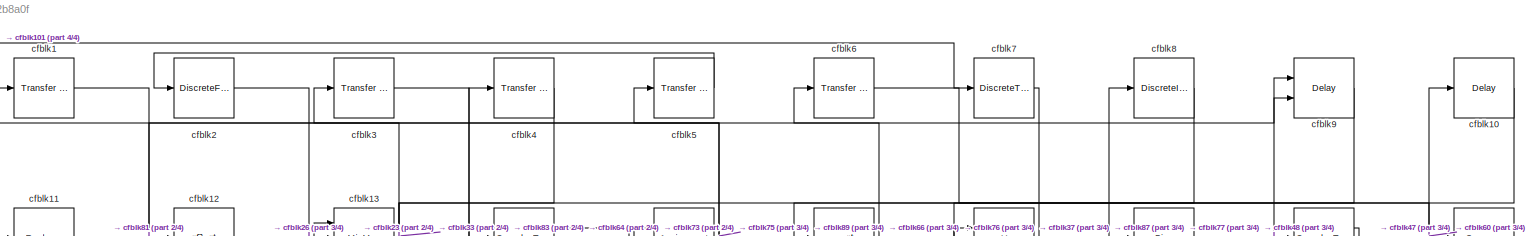
[diagram: root canvas - part 1/4, full width, top band]
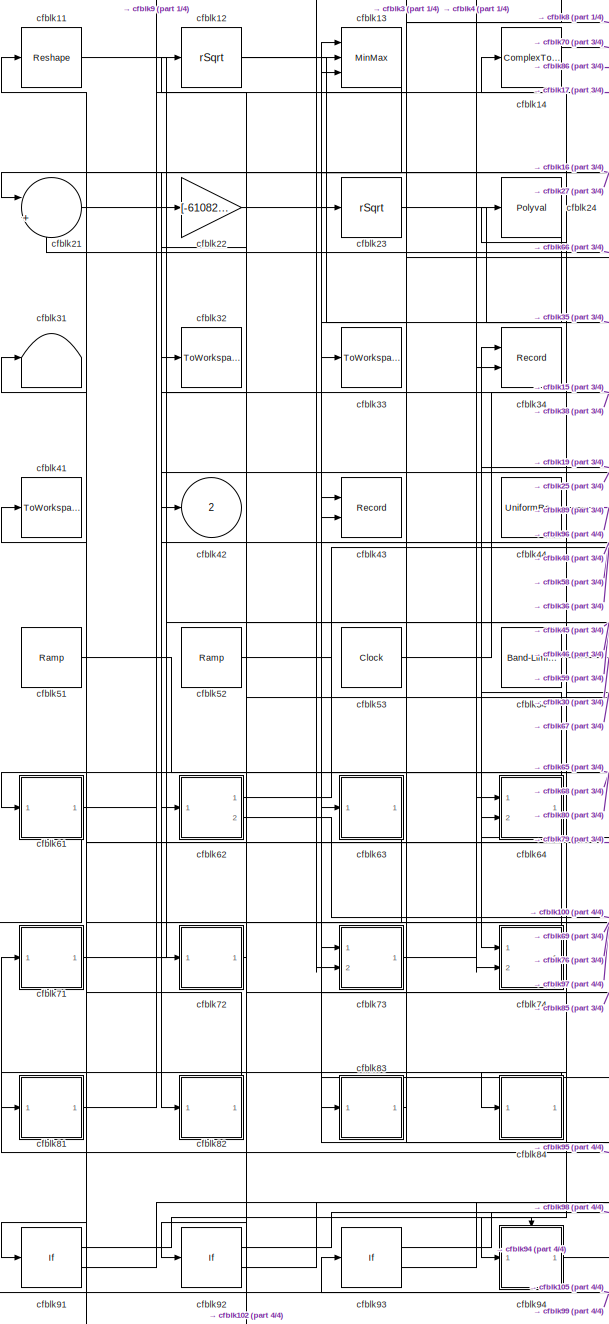
[diagram: root canvas - part 2/4, left side, full height]
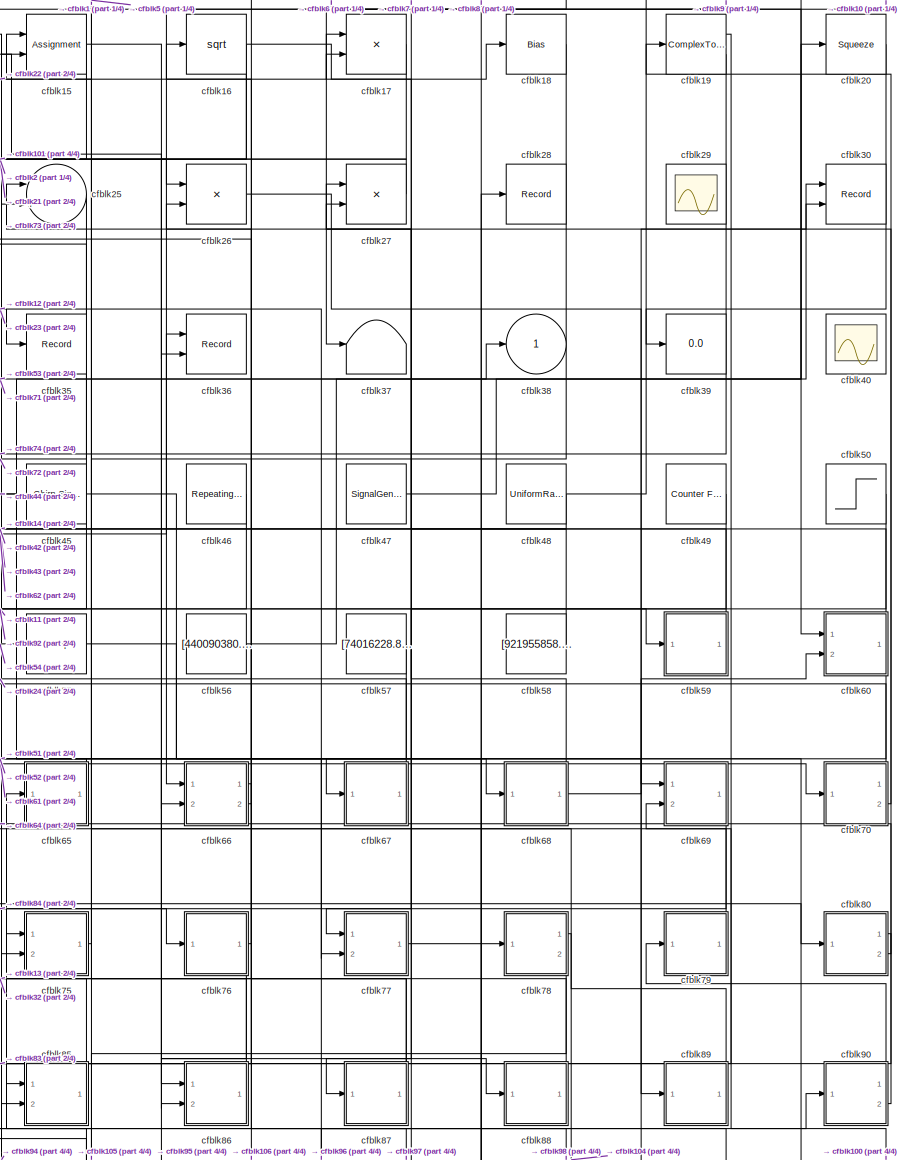
[diagram: root canvas - part 3/4, middle right region]
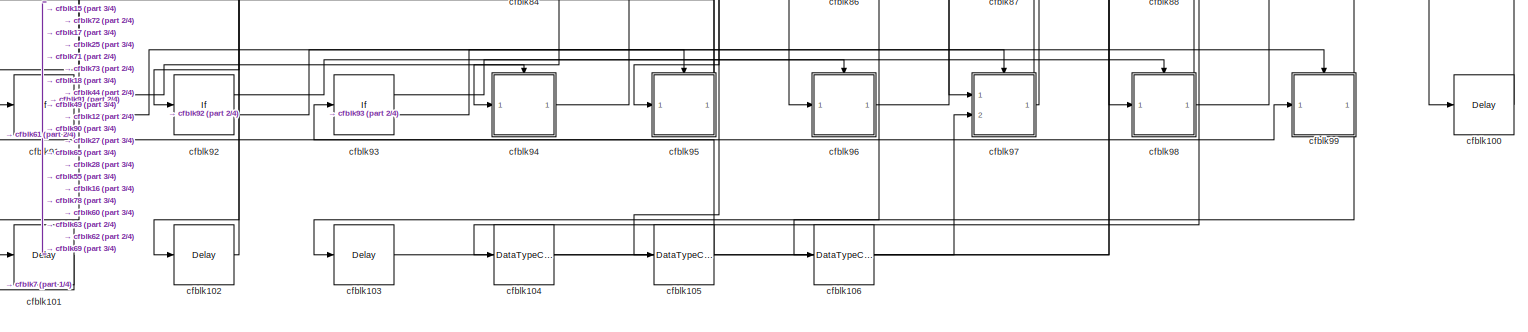
[diagram: root canvas - part 4/4, full width, bottom band]
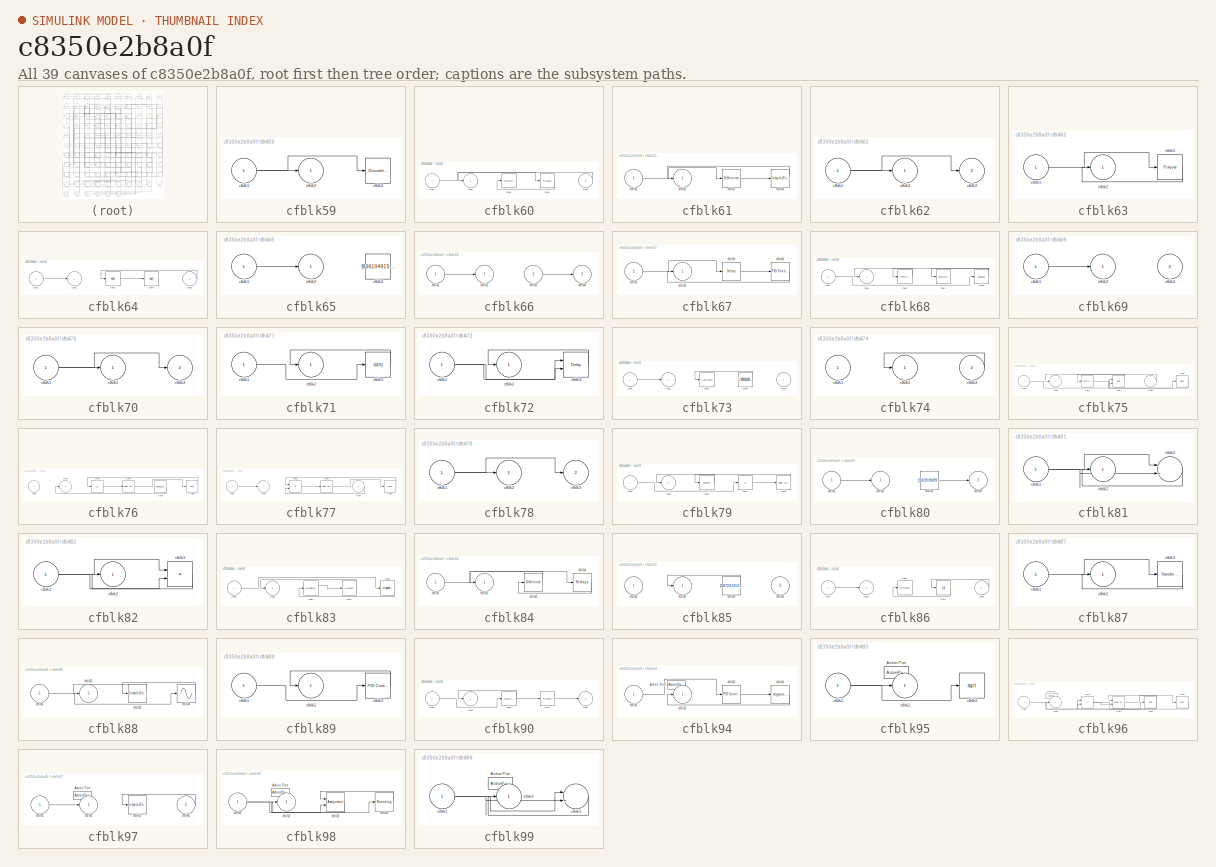
[diagram: thumbnail index - all 39 canvases of the model, root first then tree order]
MODEL slx_c8350e2b8a0f
KIND model
CONFIG AbsTol = auto
CONFIG EnableMultiTasking = off
CONFIG FixedStep = auto
CONFIG MaxStep = auto
CONFIG MinStep = auto
CONFIG RelTol = 1e-3
CONFIG SampleTimeConstraint = Unconstrained
CONFIG SolverName = VariableStepAuto
CONFIG StartTime = 0.0
CONFIG StopTime = 10.0
BLOCK [Reference] cfblk1  REF=simulink/Discrete/Transfer Fcn
Real Zero
  Ports = [1, 1]
  SourceBlock = simulink/Discrete/Transfer Fcn\nReal Zero
  SourceProductBaseCode = SL
  SourceType = Transfer Fcn Real Zero
BLOCK [Delay] cfblk10
  InputPortMap = u0
  Ports = [1, 1]
  SampleTime = 1
BLOCK [Delay] cfblk100
  InputPortMap = u0
  Ports = [1, 1]
  SampleTime = 1
BLOCK [Delay] cfblk101
  InputPortMap = u0
  Ports = [1, 1]
  SampleTime = 1
BLOCK [Delay] cfblk102
  InputPortMap = u0
  Ports = [1, 1]
  SampleTime = 1
BLOCK [Delay] cfblk103
  InputPortMap = u0
  Ports = [1, 1]
  SampleTime = 1
BLOCK [DataTypeConversion] cfblk104
  RndMeth = Floor
  SaturateOnIntegerOverflow = off
BLOCK [DataTypeConversion] cfblk105
  RndMeth = Floor
  SaturateOnIntegerOverflow = off
BLOCK [DataTypeConversion] cfblk106
  RndMeth = Floor
  SaturateOnIntegerOverflow = off
BLOCK [Reshape] cfblk11
  Ports = [1, 1]
BLOCK [Sqrt] cfblk12
  AlgorithmType = Newton-Raphson
  Operator = rSqrt
BLOCK [MinMax] cfblk13
  Function = max
  Inputs = 3
  Ports = [3, 1]
BLOCK [ComplexToRealImag] cfblk14
  Ports = [1, 2]
BLOCK [Assignment] cfblk15
  DiagnosticForDimensions = Warning
  IndexOptions = Index vector (dialog)
  Indices = 1
  OutputSizes = 1
  Ports = [2, 1]
BLOCK [Sqrt] cfblk16
BLOCK [Product] cfblk17
  Ports = [2, 1]
BLOCK [Bias] cfblk18
  Bias = [187031795.908077]
  SaturateOnIntegerOverflow = off
BLOCK [ComplexToRealImag] cfblk19
  Ports = [1, 2]
BLOCK [DiscreteFilter] cfblk2
  InputPortMap = u0
  Ports = [1, 1]
  SampleTime = 1
BLOCK [Squeeze] cfblk20
BLOCK [Sum] cfblk21
  Inputs = |++
  Ports = [2, 1]
BLOCK [Gain] cfblk22
  Gain = [-610823144.555525]
BLOCK [Sqrt] cfblk23
  AlgorithmType = Newton-Raphson
  Operator = rSqrt
BLOCK [Polyval] cfblk24
  Coefs = [ +2.081618890e-019, -1.441693666e-014, +4.719686976e-010, -8.536869453e-006, +1.621573104e-001, -8.087801117e+001 ]
BLOCK [Sum] cfblk25
  Inputs = |++
  Ports = [2, 1]
BLOCK [Product] cfblk26
  Ports = [2, 1]
BLOCK [Product] cfblk27
  Inputs = **
  Ports = [2, 1]
BLOCK [Record] cfblk28
  FileSettingsInternal = {"entries":[{"content":{"excelSettings":{"content":{},"type":"Streamout.ExcelSettings"}},"type":"Streamout.FileSettingStorage","uuid":"c22ba1ce-0fcd-43a5-9d90-0db8329606c8"}],"packageUris":["http://schema.mathworks.com/mf0/streamout_blocks/R2020a"],"version":"1.0"}
  Ports = [1]
  SignalsInternal = {"entries":[{"content":{"signals":[{"content":{"blockPath":["sampleModel208/cfblk28"],"channel":[],"dimensions":[1],"domain":"sampleModel208/cfblk28","lineColor":"#d95319","plots":[1],"port":1,"sid":[""],"signalID":8022,"signalName":"cfblk104"},"type":"RecordBlkView.Signal","uuid":"261dbd1d-26c2-4045-9e24-154e5f0ad3fe"}]},"type":"RecordBlkView.InputSignals","uuid":"b79c4309-7b5a-40c4-895f-b2cc3460...<+98ch>
  VisualizationBindings = {"sparklinesplugin":{"info":[{"bindingParametersList":[],"subplotID":1}]}}
BLOCK [Scope] cfblk29
  Floating = on
  NumInputPorts = 1
  Ports = []
BLOCK [Reference] cfblk3  REF=simulink/Discrete/Transfer Fcn
Real Zero
  Ports = [1, 1]
  SourceBlock = simulink/Discrete/Transfer Fcn\nReal Zero
  SourceProductBaseCode = SL
  SourceType = Transfer Fcn Real Zero
BLOCK [Record] cfblk30
  CompatibilityTag = XY
  FileSettingsInternal = {"entries":[{"content":{"excelSettings":{"content":{},"type":"Streamout.ExcelSettings"}},"type":"Streamout.FileSettingStorage","uuid":"b5dc1131-858a-47e8-ba90-4585db02b6d4"}],"packageUris":["http://schema.mathworks.com/mf0/streamout_blocks/R2020a"],"version":"1.0"}
  Layout = [1 1]
  Ports = [2]
  SignalsInternal = {"entries":[{"content":{"signals":[{"content":{"blockPath":["sampleModel208/cfblk30"],"channel":[],"dimensions":[1],"domain":"sampleModel208/cfblk30","lineColor":"#a2142f","plots":[1],"port":1,"sid":[""],"signalID":8026,"signalName":"cfblk54"},"type":"RecordBlkView.Signal","uuid":"3317f2e0-9c09-47a8-be30-a309801c78f4"},{"content":{"blockPath":["sampleModel208/cfblk30"],"channel":[],"dimensions":[1...<+383ch>
  VisualizationBindings = {"xyplotplugin":{"info":[{"series":[{"bindingParametersList":[{"parameter":"X-Axis","signalID":8026,"signalName":"cfblk54"},{"parameter":"Y-Axis","signalID":8030,"signalName":"cfblk68"}],"seriesID":18668}],"subplotID":1}]}}
BLOCK [Terminator] cfblk31
BLOCK [ToWorkspace] cfblk32
  FixptAsFi = on
  MaxDataPoints = inf
  Ports = [1]
  SampleTime = -1
  SaveFormat = Timeseries
  VariableName = nnbsnfq
BLOCK [ToWorkspace] cfblk33
  FixptAsFi = on
  MaxDataPoints = inf
  Ports = [1]
  SampleTime = -1
  SaveFormat = Timeseries
  VariableName = mnjrkds
BLOCK [Record] cfblk34
  CompatibilityTag = XY
  FileSettingsInternal = {"entries":[{"content":{"excelSettings":{"content":{},"type":"Streamout.ExcelSettings"}},"type":"Streamout.FileSettingStorage","uuid":"4f32d4e9-02ed-4236-9ce3-c0bcdef04756"}],"packageUris":["http://schema.mathworks.com/mf0/streamout_blocks/R2020a"],"version":"1.0"}
  Layout = [1 1]
  Ports = [2]
  SignalsInternal = {"entries":[{"content":{"signals":[{"content":{"blockPath":["sampleModel208/cfblk34"],"channel":[],"dimensions":[1],"domain":"sampleModel208/cfblk34","lineColor":"#a2142f","plots":[1],"port":1,"sid":[""],"signalID":8054,"signalName":"cfblk64"},"type":"RecordBlkView.Signal","uuid":"7ea00e73-cf0b-4523-9dfb-d0665cf2003d"},{"content":{"blockPath":["sampleModel208/cfblk34"],"channel":[],"dimensions":[1...<+383ch>
  VisualizationBindings = {"xyplotplugin":{"info":[{"series":[{"bindingParametersList":[{"parameter":"X-Axis","signalID":8054,"signalName":"cfblk64"},{"parameter":"Y-Axis","signalID":8058,"signalName":"cfblk24"}],"seriesID":28405}],"subplotID":1}]}}
BLOCK [Record] cfblk35
  FileSettingsInternal = {"entries":[{"content":{"excelSettings":{"content":{},"type":"Streamout.ExcelSettings"}},"type":"Streamout.FileSettingStorage","uuid":"4d5d1943-00c1-4ccc-bfc5-894631c5acb5"}],"packageUris":["http://schema.mathworks.com/mf0/streamout_blocks/R2020a"],"version":"1.0"}
  Ports = [1]
  SignalsInternal = {"entries":[{"content":{"signals":[{"content":{"blockPath":["sampleModel208/cfblk35"],"channel":[],"dimensions":[1],"domain":"sampleModel208/cfblk35","lineColor":"#77ac30","plots":[1],"port":1,"sid":[""],"signalID":8034,"signalName":"cfblk23"},"type":"RecordBlkView.Signal","uuid":"a308330b-7e8f-4a04-a4b5-6eaafb41392d"}]},"type":"RecordBlkView.InputSignals","uuid":"e134a712-f80f-465f-b2ee-20551d8e1...<+97ch>
  VisualizationBindings = {"sparklinesplugin":{"info":[{"bindingParametersList":[],"subplotID":1}]}}
BLOCK [Record] cfblk36
  CompatibilityTag = XY
  FileSettingsInternal = {"entries":[{"content":{"excelSettings":{"content":{},"type":"Streamout.ExcelSettings"}},"type":"Streamout.FileSettingStorage","uuid":"a0d14922-92c5-4109-8193-fc27ce21709e"}],"packageUris":["http://schema.mathworks.com/mf0/streamout_blocks/R2020a"],"version":"1.0"}
  Layout = [1 1]
  Ports = [2]
  SignalsInternal = {"entries":[{"content":{"signals":[{"content":{"blockPath":["sampleModel208/cfblk36"],"channel":[],"dimensions":[1],"domain":"sampleModel208/cfblk36","lineColor":"#a2142f","plots":[1],"port":1,"sid":[""],"signalID":8038,"signalName":"cfblk62:1"},"type":"RecordBlkView.Signal","uuid":"cf392b0d-73b1-445c-b980-8f3ea822809a"},{"content":{"blockPath":["sampleModel208/cfblk36"],"channel":[],"dimensions":...<+385ch>
  VisualizationBindings = {"xyplotplugin":{"info":[{"series":[{"bindingParametersList":[{"parameter":"X-Axis","signalID":8038,"signalName":"cfblk62:1"},{"parameter":"Y-Axis","signalID":8042,"signalName":"cfblk16"}],"seriesID":24383}],"subplotID":1}]}}
BLOCK [Terminator] cfblk37
BLOCK [Outport] cfblk38
BLOCK [Display] cfblk39
  Decimation = 1
  Ports = [1]
BLOCK [Reference] cfblk4  REF=simulink/Discrete/Transfer Fcn
Real Zero
  Ports = [1, 1]
  SourceBlock = simulink/Discrete/Transfer Fcn\nReal Zero
  SourceProductBaseCode = SL
  SourceType = Transfer Fcn Real Zero
BLOCK [Scope] cfblk40
  Floating = on
  NumInputPorts = 1
  Ports = []
BLOCK [ToWorkspace] cfblk41
  FixptAsFi = on
  MaxDataPoints = inf
  Ports = [1]
  SampleTime = -1
  SaveFormat = Timeseries
  VariableName = eakxftv
BLOCK [Outport] cfblk42
  Port = 2
BLOCK [Record] cfblk43
  CompatibilityTag = XY
  FileSettingsInternal = {"entries":[{"content":{"excelSettings":{"content":{},"type":"Streamout.ExcelSettings"}},"type":"Streamout.FileSettingStorage","uuid":"00404128-d092-4654-98f3-0c769e6ce3be"}],"packageUris":["http://schema.mathworks.com/mf0/streamout_blocks/R2020a"],"version":"1.0"}
  Layout = [1 1]
  Ports = [2]
  SignalsInternal = {"entries":[{"content":{"signals":[{"content":{"blockPath":["sampleModel208/cfblk43"],"channel":[],"dimensions":[1],"domain":"sampleModel208/cfblk43","lineColor":"#a2142f","plots":[1],"port":1,"sid":[""],"signalID":8046,"signalName":"cfblk79"},"type":"RecordBlkView.Signal","uuid":"ce2b062f-3cfe-4973-a794-e20ce7e23f9b"},{"content":{"blockPath":["sampleModel208/cfblk43"],"channel":[],"dimensions":[1...<+383ch>
  VisualizationBindings = {"xyplotplugin":{"info":[{"series":[{"bindingParametersList":[{"parameter":"X-Axis","signalID":8046,"signalName":"cfblk79"},{"parameter":"Y-Axis","signalID":8050,"signalName":"cfblk48"}],"seriesID":25686}],"subplotID":1}]}}
BLOCK [UniformRandomNumber] cfblk44
  Maximum = [7486341106.977611]
  Minimum = [-5209162267.996864]
  SampleTime = 0.1
  Seed = [64925626.000000]
BLOCK [Reference] cfblk45  REF=simulink/Sources/Chirp Signal
  Ports = [0, 1]
  SourceBlock = simulink/Sources/Chirp Signal
  SourceProductBaseCode = SL
  SourceType = chirp
BLOCK [Reference] cfblk46  REF=simulink/Sources/Repeating
Sequence
  Ports = [0, 1]
  SourceBlock = simulink/Sources/Repeating\nSequence
  SourceProductBaseCode = SL
  SourceType = Repeating table
BLOCK [SignalGenerator] cfblk47
  Amplitude = [217272616.194499]
  Ports = [0, 1]
  WaveForm = square
BLOCK [UniformRandomNumber] cfblk48
  Maximum = [5188022340.697088]
  Minimum = [-5223909817.198769]
  SampleTime = 0.1
  Seed = [56413417.000000]
BLOCK [Reference] cfblk49  REF=simulink/Sources/Counter
Free-Running
  Ports = [0, 1]
  SourceBlock = simulink/Sources/Counter\nFree-Running
  SourceProductBaseCode = SL
  SourceType = Counter Free-Running
BLOCK [Reference] cfblk5  REF=simulink/Discrete/Transfer Fcn
First Order
  Ports = [1, 1]
  SourceBlock = simulink/Discrete/Transfer Fcn\nFirst Order
  SourceProductBaseCode = SL
  SourceType = First Order Transfer Fcn
BLOCK [Step] cfblk50
  After = [-377924494.241017]
  Before = [292405392.362123]
  SampleTime = 0
  Time = [15.000000]
BLOCK [Reference] cfblk51  REF=simulink/Sources/Ramp
  Ports = [0, 1]
  SourceBlock = simulink/Sources/Ramp
  SourceProductBaseCode = SL
  SourceType = Ramp
BLOCK [Reference] cfblk52  REF=simulink/Sources/Ramp
  Ports = [0, 1]
  SourceBlock = simulink/Sources/Ramp
  SourceProductBaseCode = SL
  SourceType = Ramp
BLOCK [Clock] cfblk53
BLOCK [Reference] cfblk54  REF=simulink/Sources/Band-Limited
White Noise
  Ports = [0, 1]
  SourceBlock = simulink/Sources/Band-Limited\nWhite Noise
  SourceProductBaseCode = SL
  SourceType = Band-Limited White Noise.
BLOCK [Reference] cfblk55  REF=simulink/Sources/Ramp
  Ports = [0, 1]
  SourceBlock = simulink/Sources/Ramp
  SourceProductBaseCode = SL
  SourceType = Ramp
BLOCK [Constant] cfblk56
  SampleTime = 1
  Value = [440090380.744484]
BLOCK [Constant] cfblk57
  SampleTime = 1
  Value = [74016228.829758]
BLOCK [Constant] cfblk58
  SampleTime = 1
  Value = [921955858.671175]
BLOCK [SubSystem] cfblk59
  Ports = [1, 1]
  RequestExecContextInheritance = off
BLOCK [Inport] cfblk59/cfblk1
BLOCK [Outport] cfblk59/cfblk2
BLOCK [DiscreteIntegrator] cfblk59/cfblk3
  ICPrevOutput = DiscIntNeverNeededParam
  ICPrevScaledInput = DiscIntNeverNeededParam
  InitialConditionSetting = Auto
  Ports = [1, 1]
BLOCK [Reference] cfblk6  REF=simulink/Discrete/Transfer Fcn
Real Zero
  Ports = [1, 1]
  SourceBlock = simulink/Discrete/Transfer Fcn\nReal Zero
  SourceProductBaseCode = SL
  SourceType = Transfer Fcn Real Zero
BLOCK [SubSystem] cfblk60
  Ports = [2, 1]
  RequestExecContextInheritance = off
BLOCK [Inport] cfblk60/cfblk1
BLOCK [Outport] cfblk60/cfblk2
BLOCK [DiscreteFir] cfblk60/cfblk3
  InputPortMap = u0
  OutputPortMap = o0
  Ports = [1, 1]
  SampleTime = 1
BLOCK [Reshape] cfblk60/cfblk4
  Ports = [1, 1]
BLOCK [Inport] cfblk60/cfblk5
  Port = 2
BLOCK [SubSystem] cfblk61
  Ports = [1, 1]
  RequestExecContextInheritance = off
BLOCK [Inport] cfblk61/cfblk1
BLOCK [Outport] cfblk61/cfblk2
BLOCK [Reference] cfblk61/cfblk3  REF=simulink/Discrete/Difference
  Ports = [1, 1]
  SourceBlock = simulink/Discrete/Difference
  SourceProductBaseCode = SL
  SourceType = Difference
BLOCK [ComplexToRealImag] cfblk61/cfblk4
  Ports = [1, 2]
BLOCK [SubSystem] cfblk62
  Ports = [1, 2]
  RequestExecContextInheritance = off
BLOCK [Inport] cfblk62/cfblk1
BLOCK [Outport] cfblk62/cfblk2
BLOCK [Outport] cfblk62/cfblk3
  Port = 2
BLOCK [SubSystem] cfblk63
  Ports = [1, 1]
  RequestExecContextInheritance = off
BLOCK [Inport] cfblk63/cfblk1
BLOCK [Outport] cfblk63/cfblk2
BLOCK [Polyval] cfblk63/cfblk3
  Coefs = [ +2.081618890e-019, -1.441693666e-014, +4.719686976e-010, -8.536869453e-006, +1.621573104e-001, -8.087801117e+001 ]
BLOCK [SubSystem] cfblk64
  Ports = [2, 1]
  RequestExecContextInheritance = off
BLOCK [Inport] cfblk64/cfblk1
BLOCK [Outport] cfblk64/cfblk2
BLOCK [Sqrt] cfblk64/cfblk3
BLOCK [Sqrt] cfblk64/cfblk4
BLOCK [Inport] cfblk64/cfblk5
  Port = 2
BLOCK [SubSystem] cfblk65
  Ports = [1, 1]
  RequestExecContextInheritance = off
BLOCK [Inport] cfblk65/cfblk1
BLOCK [Outport] cfblk65/cfblk2
BLOCK [Constant] cfblk65/cfblk3
  SampleTime = 1
  Value = [606104915.024978]
BLOCK [SubSystem] cfblk66
  Ports = [2, 2]
  RequestExecContextInheritance = off
BLOCK [Inport] cfblk66/cfblk1
BLOCK [Outport] cfblk66/cfblk2
BLOCK [Inport] cfblk66/cfblk3
  Port = 2
BLOCK [Outport] cfblk66/cfblk4
  Port = 2
BLOCK [SubSystem] cfblk67
  Ports = [1, 1]
  RequestExecContextInheritance = off
BLOCK [Inport] cfblk67/cfblk1
BLOCK [Outport] cfblk67/cfblk2
BLOCK [Delay] cfblk67/cfblk3
  InputPortMap = u0
  Ports = [1, 1]
  SampleTime = 1
BLOCK [Reference] cfblk67/cfblk4  REF=slpidlib/PID Controller
  Ports = [1, 1]
  SourceBlock = slpidlib/PID Controller
  SourceProductBaseCode = SL
  SourceType = PID 1dof
BLOCK [SubSystem] cfblk68
  Ports = [1, 1]
  RequestExecContextInheritance = off
BLOCK [Inport] cfblk68/cfblk1
BLOCK [Outport] cfblk68/cfblk2
BLOCK [Reference] cfblk68/cfblk3  REF=simulink/Discrete/Transfer Fcn
Lead or Lag
  Ports = [1, 1]
  SourceBlock = simulink/Discrete/Transfer Fcn\nLead or Lag
  SourceProductBaseCode = SL
  SourceType = Lead or Lag Compensator
BLOCK [DiscreteFilter] cfblk68/cfblk4
  InputPortMap = u0
  Ports = [1, 1]
  SampleTime = 1
BLOCK [Squeeze] cfblk68/cfblk5
BLOCK [SubSystem] cfblk69
  Ports = [2, 1]
  RequestExecContextInheritance = off
BLOCK [Inport] cfblk69/cfblk1
BLOCK [Outport] cfblk69/cfblk2
BLOCK [Inport] cfblk69/cfblk3
  Port = 2
BLOCK [DiscreteTransferFcn] cfblk7
  InputPortMap = u0
  Ports = [1, 1]
  SampleTime = 1
BLOCK [SubSystem] cfblk70
  Ports = [1, 2]
  RequestExecContextInheritance = off
BLOCK [Inport] cfblk70/cfblk1
BLOCK [Outport] cfblk70/cfblk2
BLOCK [Outport] cfblk70/cfblk3
  Port = 2
BLOCK [SubSystem] cfblk71
  Ports = [1, 1]
  RequestExecContextInheritance = off
BLOCK [Inport] cfblk71/cfblk1
BLOCK [Outport] cfblk71/cfblk2
BLOCK [Math] cfblk71/cfblk3
  Operator = conj
  Ports = [1, 1]
BLOCK [SubSystem] cfblk72
  Ports = [1, 1]
  RequestExecContextInheritance = off
BLOCK [Inport] cfblk72/cfblk1
BLOCK [Outport] cfblk72/cfblk2
BLOCK [Delay] cfblk72/cfblk3
  InputPortMap = u0,e6
  Ports = [2, 1]
  SampleTime = 1
  ShowEnablePort = on
BLOCK [SubSystem] cfblk73
  Ports = [2, 1]
  RequestExecContextInheritance = off
BLOCK [Inport] cfblk73/cfblk1
BLOCK [Outport] cfblk73/cfblk2
BLOCK [UnaryMinus] cfblk73/cfblk3
BLOCK [Constant] cfblk73/cfblk4
  SampleTime = 1
  Value = [-969931198.610363]
BLOCK [Inport] cfblk73/cfblk5
  Port = 2
BLOCK [SubSystem] cfblk74
  Ports = [2, 1]
  RequestExecContextInheritance = off
BLOCK [Inport] cfblk74/cfblk1
BLOCK [Outport] cfblk74/cfblk2
BLOCK [Inport] cfblk74/cfblk3
  Port = 2
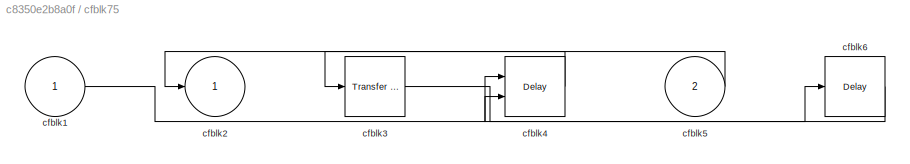
BLOCK [SubSystem] cfblk75
  Ports = [2, 1]
  RequestExecContextInheritance = off
BLOCK [Inport] cfblk75/cfblk1
BLOCK [Outport] cfblk75/cfblk2
BLOCK [Reference] cfblk75/cfblk3  REF=simulink/Discrete/Transfer Fcn
Real Zero
  Ports = [1, 1]
  SourceBlock = simulink/Discrete/Transfer Fcn\nReal Zero
  SourceProductBaseCode = SL
  SourceType = Transfer Fcn Real Zero
BLOCK [Delay] cfblk75/cfblk4
  InputPortMap = u0,e6
  Ports = [2, 1]
  SampleTime = 1
  ShowEnablePort = on
BLOCK [Inport] cfblk75/cfblk5
  Port = 2
BLOCK [Delay] cfblk75/cfblk6
  InputPortMap = u0
  Ports = [1, 1]
  SampleTime = 1
BLOCK [SubSystem] cfblk76
  Ports = [1, 1]
  RequestExecContextInheritance = off
BLOCK [Inport] cfblk76/cfblk1
BLOCK [Outport] cfblk76/cfblk2
BLOCK [UnitDelay] cfblk76/cfblk3
  HasFrameUpgradeWarning = on
BLOCK [Reference] cfblk76/cfblk4  REF=simulink/Math
Operations/Slider
Gain
  Ports = [1, 1]
  SourceBlock = simulink/Math\nOperations/Slider\nGain
  SourceProductBaseCode = SL
  SourceType = Slider Gain
BLOCK [Constant] cfblk76/cfblk5
  SampleTime = 1
  Value = [-65961943.561191]
BLOCK [Delay] cfblk76/cfblk6
  InputPortMap = u0
  Ports = [1, 1]
  SampleTime = 1
BLOCK [SubSystem] cfblk77
  Ports = [2, 1]
  RequestExecContextInheritance = off
BLOCK [Inport] cfblk77/cfblk1
BLOCK [Outport] cfblk77/cfblk2
BLOCK [Product] cfblk77/cfblk3
  Ports = [2, 1]
BLOCK [Reference] cfblk77/cfblk4  REF=simulink/Math
Operations/Slider
Gain
  Ports = [1, 1]
  SourceBlock = simulink/Math\nOperations/Slider\nGain
  SourceProductBaseCode = SL
  SourceType = Slider Gain
BLOCK [Inport] cfblk77/cfblk5
  Port = 2
BLOCK [Delay] cfblk77/cfblk6
  InputPortMap = u0
  Ports = [1, 1]
  SampleTime = 1
BLOCK [SubSystem] cfblk78
  Ports = [1, 2]
  RequestExecContextInheritance = off
BLOCK [Inport] cfblk78/cfblk1
BLOCK [Outport] cfblk78/cfblk2
BLOCK [Outport] cfblk78/cfblk3
  Port = 2
BLOCK [SubSystem] cfblk79
  Ports = [1, 1]
  RequestExecContextInheritance = off
BLOCK [Inport] cfblk79/cfblk1
BLOCK [Outport] cfblk79/cfblk2
BLOCK [Squeeze] cfblk79/cfblk3
BLOCK [Sum] cfblk79/cfblk4
  IconShape = rectangular
  Inputs = +
  Ports = [1, 1]
BLOCK [Reference] cfblk79/cfblk5  REF=simulink/Math
Operations/Slider
Gain
  Ports = [1, 1]
  SourceBlock = simulink/Math\nOperations/Slider\nGain
  SourceProductBaseCode = SL
  SourceType = Slider Gain
BLOCK [DiscreteIntegrator] cfblk8
  ICPrevOutput = DiscIntNeverNeededParam
  ICPrevScaledInput = DiscIntNeverNeededParam
  InitialConditionSetting = Auto
  Ports = [1, 1]
BLOCK [SubSystem] cfblk80
  Ports = [1, 2]
  RequestExecContextInheritance = off
BLOCK [Inport] cfblk80/cfblk1
BLOCK [Outport] cfblk80/cfblk2
BLOCK [Constant] cfblk80/cfblk3
  SampleTime = 1
  Value = [142919699.194080]
BLOCK [Outport] cfblk80/cfblk4
  Port = 2
BLOCK [SubSystem] cfblk81
  Ports = [1, 1]
  RequestExecContextInheritance = off
BLOCK [Inport] cfblk81/cfblk1
BLOCK [Outport] cfblk81/cfblk2
BLOCK [Sum] cfblk81/cfblk3
  Inputs = |++
  Ports = [2, 1]
BLOCK [SubSystem] cfblk82
  Ports = [1, 1]
  RequestExecContextInheritance = off
BLOCK [Inport] cfblk82/cfblk1
BLOCK [Outport] cfblk82/cfblk2
BLOCK [Product] cfblk82/cfblk3
  Inputs = **
  Ports = [2, 1]
BLOCK [SubSystem] cfblk83
  Ports = [1, 1]
  RequestExecContextInheritance = off
BLOCK [Inport] cfblk83/cfblk1
BLOCK [Outport] cfblk83/cfblk2
BLOCK [ComplexToRealImag] cfblk83/cfblk3
  Ports = [1, 2]
BLOCK [Reshape] cfblk83/cfblk4
  Ports = [1, 1]
BLOCK [Trigonometry] cfblk83/cfblk5
  Ports = [1, 1]
BLOCK [SubSystem] cfblk84
  Ports = [1, 1]
  RequestExecContextInheritance = off
BLOCK [Inport] cfblk84/cfblk1
BLOCK [Outport] cfblk84/cfblk2
BLOCK [Reference] cfblk84/cfblk3  REF=simulink/Discrete/Difference
  Ports = [1, 1]
  SourceBlock = simulink/Discrete/Difference
  SourceProductBaseCode = SL
  SourceType = Difference
BLOCK [Reshape] cfblk84/cfblk4
  Ports = [1, 1]
BLOCK [SubSystem] cfblk85
  Ports = [2, 1]
  RequestExecContextInheritance = off
BLOCK [Inport] cfblk85/cfblk1
BLOCK [Outport] cfblk85/cfblk2
BLOCK [Constant] cfblk85/cfblk3
  SampleTime = 1
  Value = [587237413.607553]
BLOCK [Inport] cfblk85/cfblk4
  Port = 2
BLOCK [SubSystem] cfblk86
  Ports = [2, 1]
  RequestExecContextInheritance = off
BLOCK [Inport] cfblk86/cfblk1
BLOCK [Outport] cfblk86/cfblk2
BLOCK [Reference] cfblk86/cfblk3  REF=simulink/Discrete/Difference
  Ports = [1, 1]
  SourceBlock = simulink/Discrete/Difference
  SourceProductBaseCode = SL
  SourceType = Difference
BLOCK [Abs] cfblk86/cfblk4
  SaturateOnIntegerOverflow = off
BLOCK [Inport] cfblk86/cfblk5
  Port = 2
BLOCK [SubSystem] cfblk87
  Ports = [1, 1]
  RequestExecContextInheritance = off
BLOCK [Inport] cfblk87/cfblk1
BLOCK [Outport] cfblk87/cfblk2
BLOCK [Reference] cfblk87/cfblk3  REF=simulink/Discrete/Transfer Fcn
Real Zero
  Ports = [1, 1]
  SourceBlock = simulink/Discrete/Transfer Fcn\nReal Zero
  SourceProductBaseCode = SL
  SourceType = Transfer Fcn Real Zero
BLOCK [SubSystem] cfblk88
  Ports = [1, 1]
  RequestExecContextInheritance = off
BLOCK [Inport] cfblk88/cfblk1
BLOCK [Outport] cfblk88/cfblk2
BLOCK [ComplexToMagnitudeAngle] cfblk88/cfblk3
  Ports = [1, 2]
BLOCK [Sin] cfblk88/cfblk4
  Ports = [1, 1]
  SampleTime = 0
  TimeSource = Use external signal
BLOCK [SubSystem] cfblk89
  Ports = [1, 1]
  RequestExecContextInheritance = off
BLOCK [Inport] cfblk89/cfblk1
BLOCK [Outport] cfblk89/cfblk2
BLOCK [Reference] cfblk89/cfblk3  REF=slpidlib/PID Controller
  Ports = [1, 1]
  SourceBlock = slpidlib/PID Controller
  SourceProductBaseCode = SL
  SourceType = PID 1dof
BLOCK [Delay] cfblk9
  InputPortMap = u0,e6
  Ports = [2, 1]
  SampleTime = 1
  ShowEnablePort = on
BLOCK [SubSystem] cfblk90
  Ports = [1, 2]
  RequestExecContextInheritance = off
BLOCK [Inport] cfblk90/cfblk1
BLOCK [Outport] cfblk90/cfblk2
BLOCK [Reference] cfblk90/cfblk3  REF=simulink/Discrete/Transfer Fcn
First Order
  Ports = [1, 1]
  SourceBlock = simulink/Discrete/Transfer Fcn\nFirst Order
  SourceProductBaseCode = SL
  SourceType = First Order Transfer Fcn
BLOCK [Reshape] cfblk90/cfblk4
  Ports = [1, 1]
BLOCK [Outport] cfblk90/cfblk5
  Port = 2
BLOCK [If] cfblk91
  IfExpression = u1 >= 0
  Ports = [1, 2]
  SampleTime = 1
BLOCK [If] cfblk92
  IfExpression = u1 >= 0
  Ports = [1, 2]
  SampleTime = 1
BLOCK [If] cfblk93
  IfExpression = u1 >= 0
  Ports = [1, 2]
  SampleTime = 1
BLOCK [SubSystem] cfblk94
  Ports = [1, 1, 0, 0, 0, 0, 0, 1]
  RequestExecContextInheritance = off
  TreatAsAtomicUnit = on
BLOCK [ActionPort] cfblk94/Action Port
  ActionPortLabel = if(u1 >= 0)
BLOCK [Inport] cfblk94/cfblk1
BLOCK [Outport] cfblk94/cfblk2
BLOCK [Reference] cfblk94/cfblk3  REF=slpidlib/PID Controller
  Ports = [1, 1]
  SourceBlock = slpidlib/PID Controller
  SourceProductBaseCode = SL
  SourceType = PID 1dof
BLOCK [Trigonometry] cfblk94/cfblk4
  Ports = [1, 1]
BLOCK [SubSystem] cfblk95
  Ports = [1, 1, 0, 0, 0, 0, 0, 1]
  RequestExecContextInheritance = off
  TreatAsAtomicUnit = on
BLOCK [ActionPort] cfblk95/Action Port
  ActionPortLabel = else
BLOCK [Inport] cfblk95/cfblk1
BLOCK [Outport] cfblk95/cfblk2
BLOCK [Sqrt] cfblk95/cfblk3
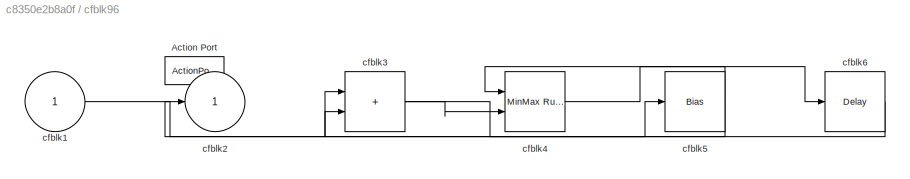
BLOCK [SubSystem] cfblk96
  Ports = [1, 1, 0, 0, 0, 0, 0, 1]
  RequestExecContextInheritance = off
  TreatAsAtomicUnit = on
BLOCK [ActionPort] cfblk96/Action Port
  ActionPortLabel = if(u1 >= 0)
BLOCK [Inport] cfblk96/cfblk1
BLOCK [Outport] cfblk96/cfblk2
BLOCK [Sum] cfblk96/cfblk3
  IconShape = rectangular
  Ports = [2, 1]
BLOCK [Reference] cfblk96/cfblk4  REF=simulink/Math
Operations/MinMax
Running
Resettable
  Ports = [2, 1]
  SourceBlock = simulink/Math\nOperations/MinMax\nRunning\nResettable
  SourceProductBaseCode = SL
  SourceType = MinMax Running Resettable
BLOCK [Bias] cfblk96/cfblk5
  Bias = [44057524.394466]
  SaturateOnIntegerOverflow = off
BLOCK [Delay] cfblk96/cfblk6
  InputPortMap = u0
  Ports = [1, 1]
BLOCK [SubSystem] cfblk97
  Ports = [2, 1, 0, 0, 0, 0, 0, 1]
  RequestExecContextInheritance = off
  TreatAsAtomicUnit = on
BLOCK [ActionPort] cfblk97/Action Port
  ActionPortLabel = else
BLOCK [Inport] cfblk97/cfblk1
BLOCK [Outport] cfblk97/cfblk2
BLOCK [ComplexToRealImag] cfblk97/cfblk3
  Ports = [1, 2]
BLOCK [Inport] cfblk97/cfblk4
  Port = 2
BLOCK [SubSystem] cfblk98
  Ports = [1, 1, 0, 0, 0, 0, 0, 1]
  RequestExecContextInheritance = off
  TreatAsAtomicUnit = on
BLOCK [ActionPort] cfblk98/Action Port
  ActionPortLabel = if(u1 >= 0)
BLOCK [Inport] cfblk98/cfblk1
BLOCK [Outport] cfblk98/cfblk2
BLOCK [Assignment] cfblk98/cfblk3
  DiagnosticForDimensions = Warning
  IndexOptions = Index vector (dialog)
  Indices = 1
  OutputSizes = 1
  Ports = [2, 1]
BLOCK [Rounding] cfblk98/cfblk4
BLOCK [SubSystem] cfblk99
  Ports = [1, 1, 0, 0, 0, 0, 0, 1]
  RequestExecContextInheritance = off
  TreatAsAtomicUnit = on
BLOCK [ActionPort] cfblk99/Action Port
  ActionPortLabel = else
BLOCK [Inport] cfblk99/cfblk1
BLOCK [Outport] cfblk99/cfblk2
BLOCK [Sum] cfblk99/cfblk3
  Inputs = |++
  Ports = [2, 1]
LINE cfblk100:1 -> cfblk69:2
LINE cfblk101:1 -> cfblk7:1
LINE cfblk102:1 -> cfblk12:1
LINE cfblk103:1 -> cfblk97:2
LINE cfblk104:1 -> cfblk28:1
LINE cfblk105:1 -> cfblk93:1
LINE cfblk106:1 -> cfblk78:1
LINE cfblk10:1 -> cfblk37:1
LINE cfblk11:1 -> cfblk59:1
NET cfblk12:1 -> cfblk76:1, cfblk97:1
LINE cfblk13:1 -> cfblk82:1
LINE cfblk14:1 -> cfblk70:1
LINE cfblk14:2 -> cfblk86:1
NET cfblk15:1 -> cfblk101:1, cfblk88:1
NET cfblk16:1 -> cfblk18:1, cfblk36:2, cfblk73:2
LINE cfblk17:1 -> cfblk94:1
LINE cfblk18:1 -> cfblk95:1
LINE cfblk19:1 -> cfblk85:1
LINE cfblk19:2 -> cfblk74:1
LINE cfblk1:1 -> cfblk75:2
LINE cfblk20:1 -> cfblk39:1
LINE cfblk21:1 -> cfblk62:1
LINE cfblk22:1 -> cfblk17:1
LINE cfblk23:1 -> cfblk35:1
LINE cfblk24:1 -> cfblk34:2
LINE cfblk25:1 -> cfblk72:1
LINE cfblk26:1 -> cfblk69:1
LINE cfblk27:1 -> cfblk21:1
LINE cfblk2:1 -> cfblk26:1
LINE cfblk3:1 -> cfblk64:1
NET cfblk44:1 -> cfblk89:1, cfblk96:1
NET cfblk45:1 -> cfblk13:2, cfblk74:2, cfblk77:2
LINE cfblk46:1 -> cfblk92:1
LINE cfblk47:1 -> cfblk10:1
NET cfblk48:1 -> cfblk43:2, cfblk9:1
LINE cfblk49:1 -> cfblk106:1
LINE cfblk4:1 -> cfblk23:1
LINE cfblk50:1 -> cfblk77:1
LINE cfblk51:1 -> cfblk68:1
LINE cfblk52:1 -> cfblk80:1
LINE cfblk53:1 -> cfblk15:2
LINE cfblk54:1 -> cfblk30:1
LINE cfblk55:1 -> cfblk98:1
LINE cfblk56:1 -> cfblk20:1
LINE cfblk57:1 -> cfblk67:1
LINE cfblk58:1 -> cfblk14:1
NET cfblk59/cfblk1:1 -> cfblk59/cfblk2:1, cfblk59/cfblk3:1
LINE cfblk59:1 -> cfblk42:1
LINE cfblk5:1 -> cfblk2:1
LINE cfblk60/cfblk1:1 -> cfblk60/cfblk4:1
LINE cfblk60/cfblk4:1 -> cfblk60/cfblk3:1
LINE cfblk60/cfblk5:1 -> cfblk60/cfblk2:1
NET cfblk60:1 -> cfblk27:1, cfblk66:2
LINE cfblk61/cfblk1:1 -> cfblk61/cfblk3:1
LINE cfblk61/cfblk3:1 -> cfblk61/cfblk4:1
LINE cfblk61/cfblk4:1 -> cfblk61/cfblk2:1
NET cfblk61:1 -> cfblk13:3, cfblk99:1
NET cfblk62/cfblk1:1 -> cfblk62/cfblk2:1, cfblk62/cfblk3:1
LINE cfblk62:1 -> cfblk36:1
LINE cfblk62:2 -> cfblk100:1
LINE cfblk63/cfblk1:1 -> cfblk63/cfblk3:1
LINE cfblk63/cfblk3:1 -> cfblk63/cfblk2:1
LINE cfblk63:1 -> cfblk91:1
LINE cfblk64/cfblk1:1 -> cfblk64/cfblk2:1
LINE cfblk64/cfblk3:1 -> cfblk64/cfblk4:1
LINE cfblk64/cfblk5:1 -> cfblk64/cfblk3:1
LINE cfblk64:1 -> cfblk34:1
LINE cfblk65/cfblk1:1 -> cfblk65/cfblk2:1
LINE cfblk65:1 -> cfblk61:1
LINE cfblk66/cfblk1:1 -> cfblk66/cfblk2:1
LINE cfblk66/cfblk3:1 -> cfblk66/cfblk4:1
LINE cfblk66:1 -> cfblk85:2
LINE cfblk66:2 -> cfblk21:2
LINE cfblk67/cfblk1:1 -> cfblk67/cfblk3:1
LINE cfblk67/cfblk3:1 -> cfblk67/cfblk4:1
LINE cfblk67/cfblk4:1 -> cfblk67/cfblk2:1
LINE cfblk67:1 -> cfblk24:1
LINE cfblk68/cfblk1:1 -> cfblk68/cfblk5:1
LINE cfblk68/cfblk3:1 -> cfblk68/cfblk2:1
NET cfblk68/cfblk5:1 -> cfblk68/cfblk3:1, cfblk68/cfblk4:1
NET cfblk68:1 -> cfblk17:2, cfblk30:2
LINE cfblk69/cfblk1:1 -> cfblk69/cfblk2:1
LINE cfblk69:1 -> cfblk84:1
LINE cfblk6:1 -> cfblk60:1
NET cfblk70/cfblk1:1 -> cfblk70/cfblk2:1, cfblk70/cfblk3:1
LINE cfblk70:1 -> cfblk22:1
LINE cfblk70:2 -> cfblk19:1
LINE cfblk71/cfblk1:1 -> cfblk71/cfblk3:1
LINE cfblk71/cfblk3:1 -> cfblk71/cfblk2:1
LINE cfblk71:1 -> cfblk38:1
NET cfblk72/cfblk1:1 -> cfblk72/cfblk3:1, cfblk72/cfblk3:2
LINE cfblk72/cfblk3:1 -> cfblk72/cfblk2:1
LINE cfblk72:1 -> cfblk102:1
LINE cfblk73/cfblk1:1 -> cfblk73/cfblk2:1
LINE cfblk73/cfblk4:1 -> cfblk73/cfblk3:1
LINE cfblk73:1 -> cfblk4:1
LINE cfblk74/cfblk3:1 -> cfblk74/cfblk2:1
NET cfblk74:1 -> cfblk31:1, cfblk41:1
LINE cfblk75/cfblk1:1 -> cfblk75/cfblk4:1
LINE cfblk75/cfblk3:1 -> cfblk75/cfblk6:1
LINE cfblk75/cfblk4:1 -> cfblk75/cfblk3:1
LINE cfblk75/cfblk5:1 -> cfblk75/cfblk2:1
LINE cfblk75/cfblk6:1 -> cfblk75/cfblk4:2
LINE cfblk75:1 -> cfblk5:1
LINE cfblk76/cfblk3:1 -> cfblk76/cfblk4:1
LINE cfblk76/cfblk4:1 -> cfblk76/cfblk6:1
LINE cfblk76/cfblk5:1 -> cfblk76/cfblk2:1
LINE cfblk76/cfblk6:1 -> cfblk76/cfblk3:1
NET cfblk76:1 -> cfblk6:1, cfblk86:2
LINE cfblk77/cfblk1:1 -> cfblk77/cfblk2:1
LINE cfblk77/cfblk3:1 -> cfblk77/cfblk4:1
LINE cfblk77/cfblk4:1 -> cfblk77/cfblk6:1
LINE cfblk77/cfblk5:1 -> cfblk77/cfblk3:2
LINE cfblk77/cfblk6:1 -> cfblk77/cfblk3:1
LINE cfblk77:1 -> cfblk8:1
NET cfblk78/cfblk1:1 -> cfblk78/cfblk2:1, cfblk78/cfblk3:1
LINE cfblk78:1 -> cfblk104:1
LINE cfblk78:2 -> cfblk105:1
LINE cfblk79/cfblk1:1 -> cfblk79/cfblk4:1
LINE cfblk79/cfblk3:1 -> cfblk79/cfblk2:1
LINE cfblk79/cfblk4:1 -> cfblk79/cfblk5:1
LINE cfblk79/cfblk5:1 -> cfblk79/cfblk3:1
LINE cfblk79:1 -> cfblk43:1
LINE cfblk7:1 -> cfblk87:1
LINE cfblk80/cfblk1:1 -> cfblk80/cfblk2:1
LINE cfblk80/cfblk3:1 -> cfblk80/cfblk4:1
LINE cfblk80:1 -> cfblk83:1
LINE cfblk80:2 -> cfblk64:2
NET cfblk81/cfblk1:1 -> cfblk81/cfblk3:1, cfblk81/cfblk3:2
LINE cfblk81/cfblk3:1 -> cfblk81/cfblk2:1
LINE cfblk81:1 -> cfblk9:2
NET cfblk82/cfblk1:1 -> cfblk82/cfblk3:1, cfblk82/cfblk3:2
LINE cfblk82/cfblk3:1 -> cfblk82/cfblk2:1
LINE cfblk82:1 -> cfblk11:1
LINE cfblk83/cfblk1:1 -> cfblk83/cfblk5:1
LINE cfblk83/cfblk3:1 -> cfblk83/cfblk4:1
LINE cfblk83/cfblk4:1 -> cfblk83/cfblk2:1
LINE cfblk83/cfblk5:1 -> cfblk83/cfblk3:1
LINE cfblk83:1 -> cfblk3:1
LINE cfblk84/cfblk1:1 -> cfblk84/cfblk4:1
LINE cfblk84/cfblk3:1 -> cfblk84/cfblk2:1
LINE cfblk84/cfblk4:1 -> cfblk84/cfblk3:1
LINE cfblk84:1 -> cfblk81:1
LINE cfblk85/cfblk3:1 -> cfblk85/cfblk2:1
LINE cfblk85:1 -> cfblk13:1
LINE cfblk86/cfblk1:1 -> cfblk86/cfblk2:1
LINE cfblk86/cfblk4:1 -> cfblk86/cfblk3:1
LINE cfblk86/cfblk5:1 -> cfblk86/cfblk4:1
LINE cfblk86:1 -> cfblk32:1
LINE cfblk87/cfblk1:1 -> cfblk87/cfblk3:1
LINE cfblk87/cfblk3:1 -> cfblk87/cfblk2:1
NET cfblk87:1 -> cfblk15:1, cfblk26:2
LINE cfblk88/cfblk1:1 -> cfblk88/cfblk4:1
LINE cfblk88/cfblk3:1 -> cfblk88/cfblk2:1
LINE cfblk88/cfblk4:1 -> cfblk88/cfblk3:1
LINE cfblk88:1 -> cfblk75:1
LINE cfblk89/cfblk1:1 -> cfblk89/cfblk3:1
LINE cfblk89/cfblk3:1 -> cfblk89/cfblk2:1
LINE cfblk89:1 -> cfblk1:1
LINE cfblk8:1 -> cfblk33:1
LINE cfblk90/cfblk1:1 -> cfblk90/cfblk3:1
NET cfblk90/cfblk3:1 -> cfblk90/cfblk2:1, cfblk90/cfblk4:1
LINE cfblk90/cfblk4:1 -> cfblk90/cfblk5:1
LINE cfblk90:1 -> cfblk79:1
LINE cfblk90:2 -> cfblk25:1
LINE cfblk91:1 -> cfblk94:ifaction
LINE cfblk91:2 -> cfblk95:ifaction
LINE cfblk92:1 -> cfblk96:ifaction
LINE cfblk92:2 -> cfblk97:ifaction
LINE cfblk93:1 -> cfblk98:ifaction
LINE cfblk93:2 -> cfblk99:ifaction
LINE cfblk94/cfblk1:1 -> cfblk94/cfblk3:1
LINE cfblk94/cfblk3:1 -> cfblk94/cfblk4:1
LINE cfblk94/cfblk4:1 -> cfblk94/cfblk2:1
LINE cfblk94:1 -> cfblk25:2
NET cfblk95/cfblk1:1 -> cfblk95/cfblk2:1, cfblk95/cfblk3:1
NET cfblk95:1 -> cfblk71:1, cfblk73:1
LINE cfblk96/cfblk1:1 -> cfblk96/cfblk3:1
NET cfblk96/cfblk3:1 -> cfblk96/cfblk4:2, cfblk96/cfblk5:1
LINE cfblk96/cfblk4:1 -> cfblk96/cfblk6:1
NET cfblk96/cfblk5:1 -> cfblk96/cfblk2:1, cfblk96/cfblk4:1
LINE cfblk96/cfblk6:1 -> cfblk96/cfblk3:2
LINE cfblk96:1 -> cfblk90:1
LINE cfblk97/cfblk1:1 -> cfblk97/cfblk2:1
LINE cfblk97/cfblk4:1 -> cfblk97/cfblk3:1
NET cfblk97:1 -> cfblk27:2, cfblk65:1
NET cfblk98/cfblk1:1 -> cfblk98/cfblk3:2, cfblk98/cfblk4:1
LINE cfblk98/cfblk3:1 -> cfblk98/cfblk2:1
LINE cfblk98/cfblk4:1 -> cfblk98/cfblk3:1
NET cfblk98:1 -> cfblk16:1, cfblk60:2
NET cfblk99/cfblk1:1 -> cfblk99/cfblk3:1, cfblk99/cfblk3:2
LINE cfblk99/cfblk3:1 -> cfblk99/cfblk2:1
NET cfblk99:1 -> cfblk103:1, cfblk63:1
LINE cfblk9:1 -> cfblk66:1
note: NET lines group one-source signal fan-out (src -> all destinations, sorted); 1:1 wires keep LINE
